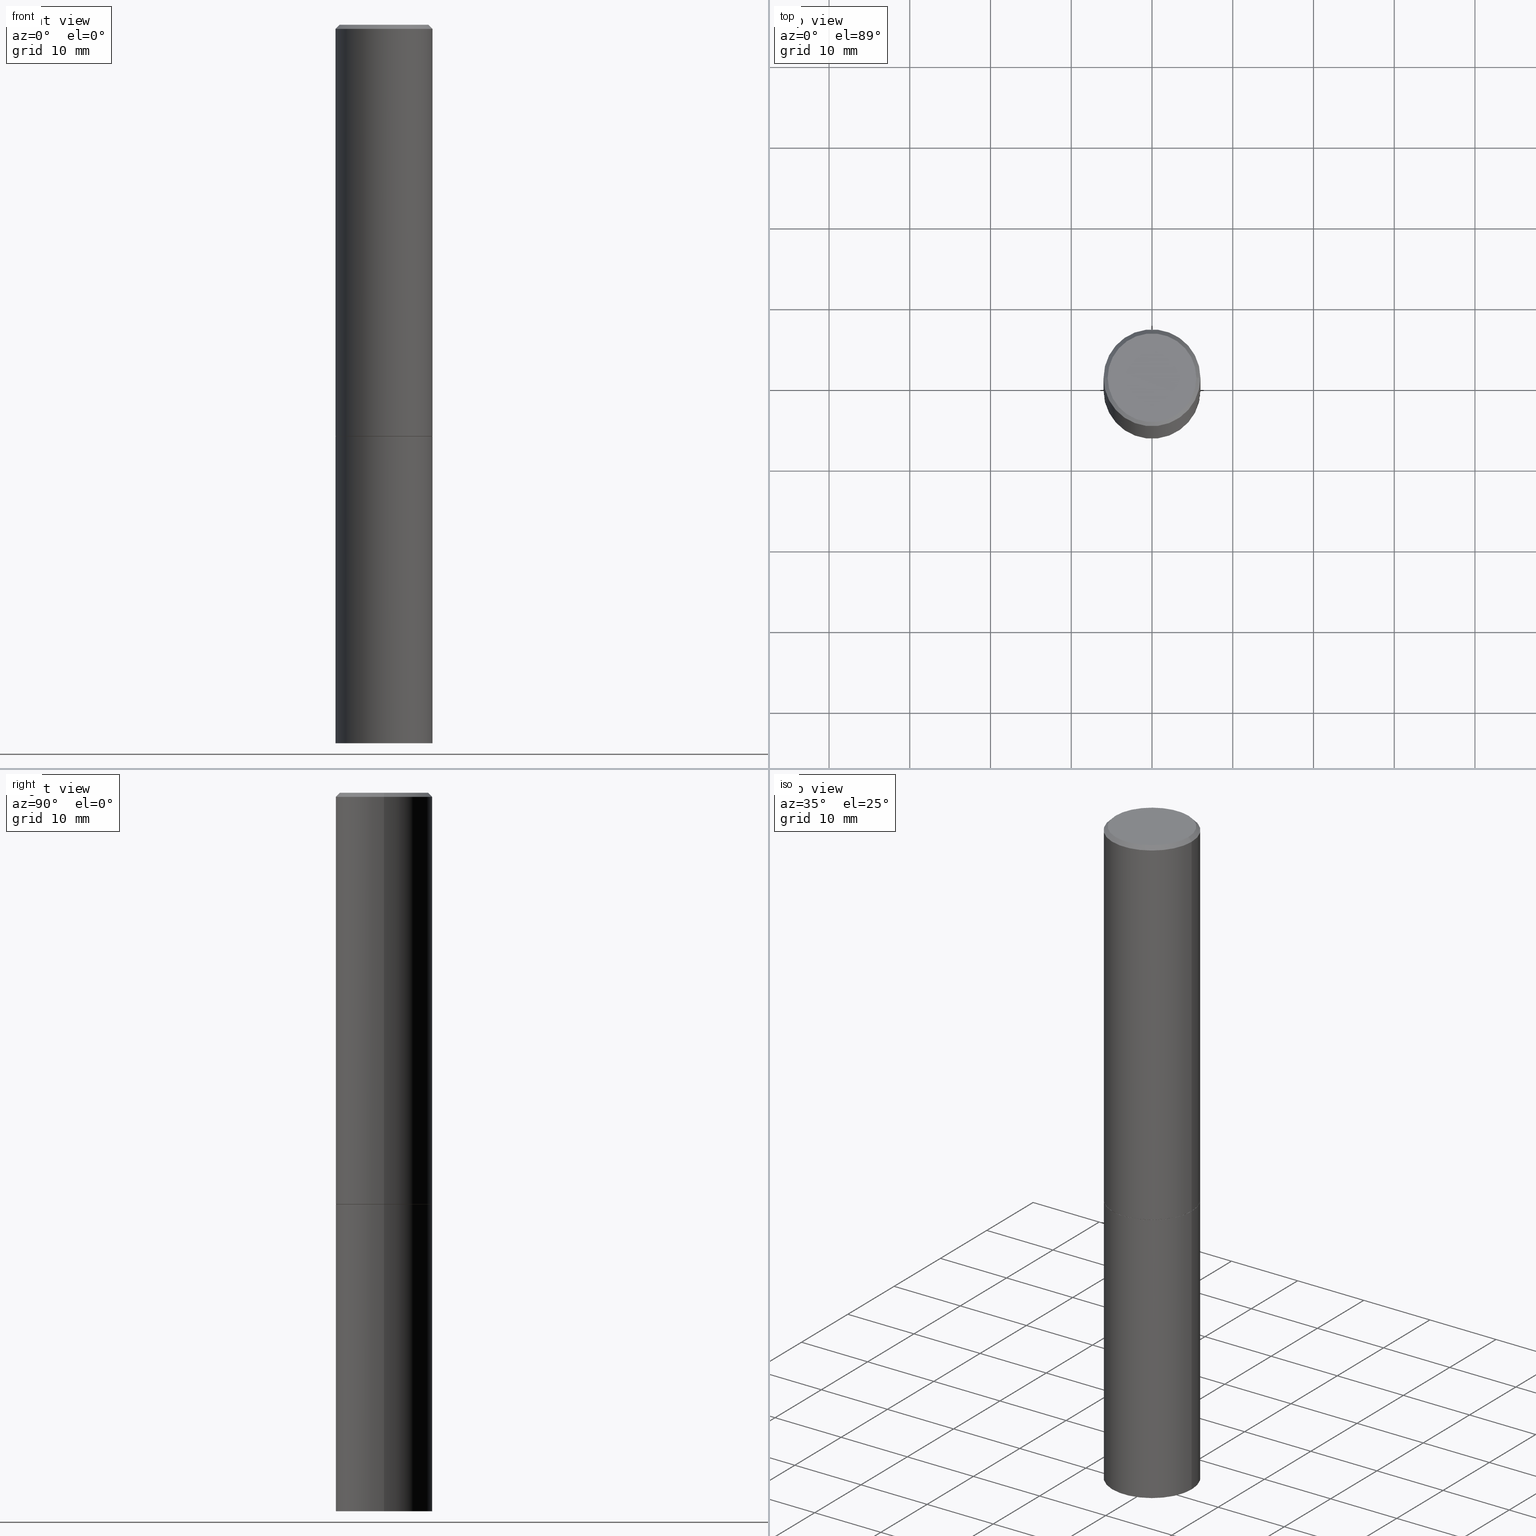
[diagram: canonical four-view strip — front | top / right | iso, engineering-drawing reading convention]
A machine part, canonical four-view strip (front | top / right | iso — engineering-drawing reading convention). The complete STEP part file that produces these views, byte-faithful:
ISO-10303-21;
HEADER;
FILE_DESCRIPTION (( 'STEP AP203' ),
    '1' );
FILE_NAME ('82981.STEP',
    '2024-02-29T20:28:29',
    ( '' ),
    ( '' ),
    'SwSTEP 2.0',
    'SolidWorks 2023',
    '' );
FILE_SCHEMA (( 'CONFIG_CONTROL_DESIGN' ));
ENDSEC;

DATA;
#1 = PERSON_AND_ORGANIZATION ( #50, #365 ) ;
#2 = ORIENTED_EDGE ( 'NONE', *, *, #134, .F. ) ;
#3 = DIRECTION ( 'NONE',  ( 1.000000000000000000, -6.982962677686266711E-15, 4.876176775795935793E-29 ) ) ;
#4 =( GEOMETRIC_REPRESENTATION_CONTEXT ( 3 ) GLOBAL_UNCERTAINTY_ASSIGNED_CONTEXT ( ( #354 ) ) GLOBAL_UNIT_ASSIGNED_CONTEXT ( ( #343, #117, #112 ) ) REPRESENTATION_CONTEXT ( 'NONE', 'WORKASPACE' ) );
#5 = ORIENTED_EDGE ( 'NONE', *, *, #270, .T. ) ;
#6 = CC_DESIGN_PERSON_AND_ORGANIZATION_ASSIGNMENT ( #1, #341, ( #241 ) ) ;
#7 = EDGE_CURVE ( 'NONE', #203, #261, #55, .T. ) ;
#8 = LENGTH_MEASURE_WITH_UNIT ( LENGTH_MEASURE( 0.02539999999999999897 ), #254 );
#9 = ORIENTED_EDGE ( 'NONE', *, *, #108, .F. ) ;
#10 = CARTESIAN_POINT ( 'NONE',  ( -0.2361999999999998545, 1.678301941865355605E-15, -1.161852468318208056E-29 ) ) ;
#11 = CC_DESIGN_SECURITY_CLASSIFICATION ( #191, ( #241 ) ) ;
#12 = DIRECTION ( 'NONE',  ( 1.000000000000000000, -6.982962677686265133E-15, 0.000000000000000000 ) ) ;
#13 = DIRECTION ( 'NONE',  ( -2.445468806185136877E-29, 3.491481338843145188E-15, 1.000000000000000000 ) ) ;
#14 = CARTESIAN_POINT ( 'NONE',  ( 0.2361999999999997157, -1.690279253850496996E-15, -0.02000000000000003164 ) ) ;
#15 = VECTOR ( 'NONE', #81, 39.37007874015748143 ) ;
#16 = EDGE_CURVE ( 'NONE', #231, #87, #181, .T. ) ;
#17 = CARTESIAN_POINT ( 'NONE',  ( 0.2351999999999999924, -8.652589053921076343E-15, -2.007800000000000029 ) ) ;
#18 = FACE_OUTER_BOUND ( 'NONE', #57, .T. ) ;
#19 = PLANE ( 'NONE',  #329 ) ;
#20 = VECTOR ( 'NONE', #278, 39.37007874015748143 ) ;
#21 = DIRECTION ( 'NONE',  ( -2.445468806185136597E-29, 3.491481338843145583E-15, 1.000000000000000000 ) ) ;
#22 = DIRECTION ( 'NONE',  ( -1.000000000000000000, 6.982962677686265922E-15, -4.876176775795935793E-29 ) ) ;
#23 = CARTESIAN_POINT ( 'NONE',  ( -0.2361999999999997157, 1.579546157692631255E-15, -0.02000000000000003164 ) ) ;
#24 = DESIGN_CONTEXT ( 'detailed design', #35, 'design' ) ;
#25 = LOCAL_TIME ( 15, 28, 29.00000000000000000, #345 ) ;
#26 = CARTESIAN_POINT ( 'NONE',  ( 0.000000000000000000, 0.000000000000000000, 0.000000000000000000 ) ) ;
#27 = PERSON_AND_ORGANIZATION ( #50, #365 ) ;
#28 = ORIENTED_EDGE ( 'NONE', *, *, #103, .F. ) ;
#29 = APPROVAL_ROLE ( '' ) ;
#30 = EDGE_CURVE ( 'NONE', #139, #337, #277, .T. ) ;
#31 = AXIS2_PLACEMENT_3D ( 'NONE', #160, #363, #330 ) ;
#32 = APPROVAL_STATUS ( 'not_yet_approved' ) ;
#33 = CC_DESIGN_APPROVAL ( #223, ( #191 ) ) ;
#34 = EDGE_LOOP ( 'NONE', ( #226, #85 ) ) ;
#35 = APPLICATION_CONTEXT ( 'configuration controlled 3d designs of mechanical parts and assemblies' ) ;
#36 = DATE_AND_TIME ( #140, #347 ) ;
#37 = EDGE_LOOP ( 'NONE', ( #2, #198, #60, #177 ) ) ;
#38 = ORIENTED_EDGE ( 'NONE', *, *, #80, .F. ) ;
#39 = VECTOR ( 'NONE', #272, 39.37007874015748143 ) ;
#40 = FACE_OUTER_BOUND ( 'NONE', #65, .T. ) ;
#41 = ADVANCED_FACE ( 'NONE', ( #351 ), #239, .T. ) ;
#42 = LINE ( 'NONE', #95, #150 ) ;
#43 = DIRECTION ( 'NONE',  ( 2.445468806185136597E-29, -3.491481338843145583E-15, -1.000000000000000000 ) ) ;
#44 = APPROVAL ( #32, 'UNSPECIFIED' ) ;
#45 = EDGE_LOOP ( 'NONE', ( #342, #283, #141, #258 ) ) ;
#46 = VECTOR ( 'NONE', #326, 39.37007874015748143 ) ;
#47 = DIRECTION ( 'NONE',  ( 0.7071067811865232589, -2.468850131082003836E-15, 0.7071067811865715536 ) ) ;
#48 = DIRECTION ( 'NONE',  ( 1.000000000000000000, -6.982962677686269077E-15, 0.000000000000000000 ) ) ;
#49 = ADVANCED_FACE ( 'NONE', ( #68 ), #310, .T. ) ;
#50 = PERSON ( 'UNSPECIFIED', 'UNSPECIFIED', 'UNSPECIFIED', ('UNSPECIFIED'), ('UNSPECIFIED'), ('UNSPECIFIED') ) ;
#51 = DIRECTION ( 'NONE',  ( -2.445468806185136597E-29, 3.491481338843145583E-15, 1.000000000000000000 ) ) ;
#52 = CARTESIAN_POINT ( 'NONE',  ( -1.043851414335219820E-46, 1.490343170380447200E-32, 4.268512490100411279E-18 ) ) ;
#53 = CARTESIAN_POINT ( 'NONE',  ( 0.2351999999999999924, -8.652589053921076343E-15, -2.007800000000000029 ) ) ;
#54 = DIRECTION ( 'NONE',  ( 2.438088387897960049E-29, -3.491481338843145188E-15, -1.000000000000000000 ) ) ;
#55 = CIRCLE ( 'NONE', #266, 0.2361999999999999933 ) ;
#56 = FACE_OUTER_BOUND ( 'NONE', #172, .T. ) ;
#57 = EDGE_LOOP ( 'NONE', ( #235, #340, #111, #146 ) ) ;
#58 = ORIENTED_EDGE ( 'NONE', *, *, #105, .T. ) ;
#59 = EDGE_CURVE ( 'NONE', #89, #87, #155, .T. ) ;
#60 = ORIENTED_EDGE ( 'NONE', *, *, #108, .T. ) ;
#61 = AXIS2_PLACEMENT_3D ( 'NONE', #52, #251, #135 ) ;
#62 = CALENDAR_DATE ( 2024, 29, 2 ) ;
#63 = LOCAL_TIME ( 15, 28, 29.00000000000000000, #92 ) ;
#64 = VERTEX_POINT ( 'NONE', #100 ) ;
#65 = EDGE_LOOP ( 'NONE', ( #286, #171, #265, #313 ) ) ;
#66 = DIRECTION ( 'NONE',  ( -1.000000000000000000, 6.982962677686265922E-15, -4.876176775795935793E-29 ) ) ;
#67 = FACE_OUTER_BOUND ( 'NONE', #174, .T. ) ;
#68 = FACE_OUTER_BOUND ( 'NONE', #151, .T. ) ;
#69 = CC_DESIGN_PERSON_AND_ORGANIZATION_ASSIGNMENT ( #138, #145, ( #241 ) ) ;
#70 = CARTESIAN_POINT ( 'NONE',  ( 0.000000000000000000, 0.000000000000000000, 0.000000000000000000 ) ) ;
#71 = CARTESIAN_POINT ( 'NONE',  ( 0.000000000000000000, 0.000000000000000000, 0.000000000000000000 ) ) ;
#72 = APPROVAL_PERSON_ORGANIZATION ( #27, #44, #173 ) ;
#73 = CARTESIAN_POINT ( 'NONE',  ( 4.890937612370280165E-31, -6.982962677686301470E-17, -0.02000000000000003164 ) ) ;
#74 = DIRECTION ( 'NONE',  ( 2.438088387897960049E-29, -3.491481338843145188E-15, -1.000000000000000000 ) ) ;
#75 = FACE_OUTER_BOUND ( 'NONE', #34, .T. ) ;
#76 = ADVANCED_BREP_SHAPE_REPRESENTATION ( '82981', ( #147, #149, #119 ), #4 ) ;
#77 = PRODUCT_RELATED_PRODUCT_CATEGORY ( 'detail', '', ( #238 ) ) ;
#78 = AXIS2_PLACEMENT_3D ( 'NONE', #297, #158, #123 ) ;
#79 = CARTESIAN_POINT ( 'NONE',  ( 4.907566800252331482E-29, -7.006704750790423614E-15, -2.006799999999999695 ) ) ;
#80 = EDGE_CURVE ( 'NONE', #261, #237, #42, .T. ) ;
#81 = DIRECTION ( 'NONE',  ( -0.7071067811865467956, 2.468850131082249172E-15, -0.7071067811865482389 ) ) ;
#82 = PERSON_AND_ORGANIZATION_ROLE ( 'creator' ) ;
#83 = ORIENTED_EDGE ( 'NONE', *, *, #229, .T. ) ;
#84 = AXIS2_PLACEMENT_3D ( 'NONE', #180, #213, #210 ) ;
#85 = ORIENTED_EDGE ( 'NONE', *, *, #30, .F. ) ;
#86 = SECURITY_CLASSIFICATION_LEVEL ( 'unclassified' ) ;
#87 = VERTEX_POINT ( 'NONE', #14 ) ;
#88 = PRODUCT_DEFINITION_SHAPE ( 'NONE', 'NONE',  #242 ) ;
#89 = VERTEX_POINT ( 'NONE', #159 ) ;
#90 = CC_DESIGN_PERSON_AND_ORGANIZATION_ASSIGNMENT ( #199, #287, ( #191 ) ) ;
#91 = CIRCLE ( 'NONE', #282, 0.2361999999999999933 ) ;
#92 = COORDINATED_UNIVERSAL_TIME_OFFSET ( 5, 0, .BEHIND. ) ;
#93 = AXIS2_PLACEMENT_3D ( 'NONE', #320, #232, #3 ) ;
#94 = PLANE ( 'NONE',  #175 ) ;
#95 = CARTESIAN_POINT ( 'NONE',  ( -0.2361999999999999933, 1.678301941865356591E-15, -1.161852468318208757E-29 ) ) ;
#96 = CC_DESIGN_DATE_AND_TIME_ASSIGNMENT ( #290, #202, ( #242 ) ) ;
#97 = EDGE_CURVE ( 'NONE', #261, #203, #352, .T. ) ;
#98 = CIRCLE ( 'NONE', #109, 0.2361999999999999933 ) ;
#99 = CARTESIAN_POINT ( 'NONE',  ( 8.568678149992099474E-29, -1.223380146317249786E-14, -3.503899999999999793 ) ) ;
#100 = CARTESIAN_POINT ( 'NONE',  ( -0.2361999999999997157, 1.579546157692631255E-15, -0.02000000000000003164 ) ) ;
#101 = DIRECTION ( 'NONE',  ( -2.445468806185136597E-29, 3.491481338843145583E-15, 1.000000000000000000 ) ) ;
#102 = DIRECTION ( 'NONE',  ( -2.445468806185136597E-29, 3.491481338843145583E-15, 1.000000000000000000 ) ) ;
#103 = EDGE_CURVE ( 'NONE', #231, #116, #246, .T. ) ;
#104 = DIRECTION ( 'NONE',  ( -2.445468806185136597E-29, 3.491481338843145583E-15, 1.000000000000000000 ) ) ;
#105 = EDGE_CURVE ( 'NONE', #116, #64, #303, .T. ) ;
#106 = DIRECTION ( 'NONE',  ( -2.445468806185136597E-29, 3.491481338843145583E-15, 1.000000000000000000 ) ) ;
#107 = DIRECTION ( 'NONE',  ( 1.000000000000000000, -6.982962677686264344E-15, 0.000000000000000000 ) ) ;
#108 = EDGE_CURVE ( 'NONE', #337, #231, #243, .T. ) ;
#109 = AXIS2_PLACEMENT_3D ( 'NONE', #362, #51, #48 ) ;
#110 = DIRECTION ( 'NONE',  ( 1.000000000000000000, -6.982962677686269077E-15, 0.000000000000000000 ) ) ;
#111 = ORIENTED_EDGE ( 'NONE', *, *, #208, .T. ) ;
#112 =( NAMED_UNIT ( * ) SI_UNIT ( $, .STERADIAN. ) SOLID_ANGLE_UNIT ( ) );
#113 = ORIENTED_EDGE ( 'NONE', *, *, #134, .T. ) ;
#114 = CALENDAR_DATE ( 2024, 29, 2 ) ;
#115 = COORDINATED_UNIVERSAL_TIME_OFFSET ( 5, 0, .BEHIND. ) ;
#116 = VERTEX_POINT ( 'NONE', #294 ) ;
#117 =( NAMED_UNIT ( * ) PLANE_ANGLE_UNIT ( ) SI_UNIT ( $, .RADIAN. ) );
#118 = CLOSED_SHELL ( 'NONE', ( #319, #361, #298, #49, #41, #333, #276, #187 ) ) ;
#119 = AXIS2_PLACEMENT_3D ( 'NONE', #26, #262, #234 ) ;
#120 = ORIENTED_EDGE ( 'NONE', *, *, #16, .F. ) ;
#121 = ORIENTED_EDGE ( 'NONE', *, *, #256, .T. ) ;
#122 = ADVANCED_FACE ( 'NONE', ( #40 ), #355, .T. ) ;
#123 = DIRECTION ( 'NONE',  ( 1.000000000000000000, -6.982962677686264344E-15, 0.000000000000000000 ) ) ;
#124 = SHAPE_DEFINITION_REPRESENTATION ( #88, #76 ) ;
#125 = VECTOR ( 'NONE', #13, 39.37007874015748143 ) ;
#126 = CARTESIAN_POINT ( 'NONE',  ( 8.568678149992099474E-29, -1.223380146317249786E-14, -3.503899999999999793 ) ) ;
#127 = CALENDAR_DATE ( 2024, 29, 2 ) ;
#128 = LINE ( 'NONE', #182, #183 ) ;
#129 = CARTESIAN_POINT ( 'NONE',  ( 1.649375784469545040E-15, 0.2361999999999929989, -2.007800000000000473 ) ) ;
#130 = DIRECTION ( 'NONE',  ( -1.000000000000000000, 6.982962677686265922E-15, -4.876176775795935793E-29 ) ) ;
#131 = AXIS2_PLACEMENT_3D ( 'NONE', #71, #236, #215 ) ;
#132 = AXIS2_PLACEMENT_3D ( 'NONE', #279, #275, #107 ) ;
#133 = DIRECTION ( 'NONE',  ( 2.445468806185136597E-29, -3.491481338843145583E-15, -1.000000000000000000 ) ) ;
#134 = EDGE_CURVE ( 'NONE', #139, #116, #128, .T. ) ;
#135 = DIRECTION ( 'NONE',  ( 1.000000000000000000, -6.982962677686267499E-15, 4.876217060660161841E-29 ) ) ;
#136 = FACE_OUTER_BOUND ( 'NONE', #346, .T. ) ;
#137 = CLOSED_SHELL ( 'NONE', ( #122, #284, #188, #357 ) ) ;
#138 = PERSON_AND_ORGANIZATION ( #50, #365 ) ;
#139 = VERTEX_POINT ( 'NONE', #244 ) ;
#140 = CALENDAR_DATE ( 2024, 29, 2 ) ;
#141 = ORIENTED_EDGE ( 'NONE', *, *, #16, .T. ) ;
#142 = CONICAL_SURFACE ( 'NONE', #302, 0.2361999999999997157, 0.7853981633974472798 ) ;
#143 = MECHANICAL_CONTEXT ( 'NONE', #314, 'mechanical' ) ;
#144 = ORIENTED_EDGE ( 'NONE', *, *, #103, .T. ) ;
#145 = PERSON_AND_ORGANIZATION_ROLE ( 'creator' ) ;
#146 = ORIENTED_EDGE ( 'NONE', *, *, #349, .F. ) ;
#147 = MANIFOLD_SOLID_BREP ( 'Body-Move/Copy2[1]', #137 ) ;
#148 = ORIENTED_EDGE ( 'NONE', *, *, #97, .F. ) ;
#149 = MANIFOLD_SOLID_BREP ( 'Body-Move/Copy2[2]', #118 ) ;
#150 = VECTOR ( 'NONE', #271, 39.37007874015748143 ) ;
#151 = EDGE_LOOP ( 'NONE', ( #227, #288, #153, #5 ) ) ;
#152 = DATE_TIME_ROLE ( 'classification_date' ) ;
#153 = ORIENTED_EDGE ( 'NONE', *, *, #349, .T. ) ;
#154 = DIMENSIONAL_EXPONENTS ( 1.000000000000000000, 0.000000000000000000, 0.000000000000000000, 0.000000000000000000, 0.000000000000000000, 0.000000000000000000, 0.000000000000000000 ) ;
#155 = LINE ( 'NONE', #268, #39 ) ;
#156 = CALENDAR_DATE ( 2024, 29, 2 ) ;
#157 = CIRCLE ( 'NONE', #240, 0.2361999999999997157 ) ;
#158 = DIRECTION ( 'NONE',  ( -2.445468806185136597E-29, 3.491481338843145583E-15, 1.000000000000000000 ) ) ;
#159 = CARTESIAN_POINT ( 'NONE',  ( 0.2161999999999997257, -1.586759460484350016E-15, 4.268512490111238857E-18 ) ) ;
#160 = CARTESIAN_POINT ( 'NONE',  ( 4.910012269058516525E-29, -7.010196232129267410E-15, -2.007800000000000029 ) ) ;
#161 = CARTESIAN_POINT ( 'NONE',  ( 1.649375784469581525E-15, 0.2361999999999877808, -3.503900000000000681 ) ) ;
#162 = CC_DESIGN_APPROVAL ( #44, ( #241 ) ) ;
#163 = EDGE_CURVE ( 'NONE', #293, #89, #318, .T. ) ;
#164 = FACE_OUTER_BOUND ( 'NONE', #317, .T. ) ;
#165 = LINE ( 'NONE', #23, #15 ) ;
#166 = CC_DESIGN_DATE_AND_TIME_ASSIGNMENT ( #214, #152, ( #191 ) ) ;
#167 = DIRECTION ( 'NONE',  ( 1.000000000000000000, -6.982962677686266711E-15, 4.876176775795936353E-29 ) ) ;
#168 = AXIS2_PLACEMENT_3D ( 'NONE', #193, #21, #332 ) ;
#169 = CONICAL_SURFACE ( 'NONE', #353, 0.2351999999999999924, 0.7853981633974141952 ) ;
#170 = DATE_AND_TIME ( #114, #25 ) ;
#171 = ORIENTED_EDGE ( 'NONE', *, *, #80, .T. ) ;
#172 = EDGE_LOOP ( 'NONE', ( #144, #58, #344, #120 ) ) ;
#173 = APPROVAL_ROLE ( '' ) ;
#174 = EDGE_LOOP ( 'NONE', ( #200, #321 ) ) ;
#175 = AXIS2_PLACEMENT_3D ( 'NONE', #207, #322, #66 ) ;
#176 = APPLICATION_PROTOCOL_DEFINITION ( 'international standard', 'config_control_design', 1994, #314 ) ;
#177 = ORIENTED_EDGE ( 'NONE', *, *, #309, .F. ) ;
#178 = DIRECTION ( 'NONE',  ( -2.445468806185136597E-29, 3.491481338843145583E-15, 1.000000000000000000 ) ) ;
#179 = AXIS2_PLACEMENT_3D ( 'NONE', #331, #305, #110 ) ;
#180 = CARTESIAN_POINT ( 'NONE',  ( 4.907566800252331482E-29, -7.006704750790423614E-15, -2.006799999999999695 ) ) ;
#181 = LINE ( 'NONE', #299, #46 ) ;
#182 = CARTESIAN_POINT ( 'NONE',  ( -0.2351999999999999924, -5.338999717621511235E-15, -2.007800000000000029 ) ) ;
#183 = VECTOR ( 'NONE', #301, 39.37007874015748854 ) ;
#184 = DIRECTION ( 'NONE',  ( -2.445468806185136597E-29, 3.491481338843145583E-15, 1.000000000000000000 ) ) ;
#185 = DIRECTION ( 'NONE',  ( -2.445468806185136597E-29, 3.491481338843145583E-15, 1.000000000000000000 ) ) ;
#186 = CARTESIAN_POINT ( 'NONE',  ( 0.2361999999999999933, -1.649375784469496131E-15, 1.151752954443000088E-29 ) ) ;
#187 = ADVANCED_FACE ( 'NONE', ( #350 ), #94, .F. ) ;
#188 = ADVANCED_FACE ( 'NONE', ( #67 ), #19, .F. ) ;
#189 = CARTESIAN_POINT ( 'NONE',  ( 0.2361999999999999933, -8.659572016598763935E-15, -2.007800000000000029 ) ) ;
#190 = AXIS2_PLACEMENT_3D ( 'NONE', #356, #178, #348 ) ;
#191 = SECURITY_CLASSIFICATION ( '', '', #86 ) ;
#192 = DIRECTION ( 'NONE',  ( -1.000000000000000000, 6.982962677686266711E-15, 0.000000000000000000 ) ) ;
#193 = CARTESIAN_POINT ( 'NONE',  ( 4.910012269058516525E-29, -7.010196232129267410E-15, -2.007800000000000029 ) ) ;
#194 = ORIENTED_EDGE ( 'NONE', *, *, #163, .T. ) ;
#195 = AXIS2_PLACEMENT_3D ( 'NONE', #328, #43, #324 ) ;
#196 = APPROVAL_PERSON_ORGANIZATION ( #312, #228, #29 ) ;
#197 = APPROVAL_STATUS ( 'not_yet_approved' ) ;
#198 = ORIENTED_EDGE ( 'NONE', *, *, #30, .T. ) ;
#199 = PERSON_AND_ORGANIZATION ( #50, #365 ) ;
#200 = ORIENTED_EDGE ( 'NONE', *, *, #257, .T. ) ;
#201 = EDGE_CURVE ( 'NONE', #237, #311, #221, .T. ) ;
#202 = DATE_TIME_ROLE ( 'creation_date' ) ;
#203 = VERTEX_POINT ( 'NONE', #249 ) ;
#204 = COORDINATED_UNIVERSAL_TIME_OFFSET ( 5, 0, .BEHIND. ) ;
#205 = ORIENTED_EDGE ( 'NONE', *, *, #217, .T. ) ;
#206 = CC_DESIGN_PERSON_AND_ORGANIZATION_ASSIGNMENT ( #315, #82, ( #242 ) ) ;
#207 = CARTESIAN_POINT ( 'NONE',  ( 1.509716530915768746E-15, 0.2161999999999997257, -7.527240092128370190E-16 ) ) ;
#208 = EDGE_CURVE ( 'NONE', #87, #64, #252, .T. ) ;
#209 = APPROVAL_ROLE ( '' ) ;
#210 = DIRECTION ( 'NONE',  ( 1.000000000000000000, -6.982962677686265133E-15, 0.000000000000000000 ) ) ;
#211 = AXIS2_PLACEMENT_3D ( 'NONE', #126, #184, #12 ) ;
#212 = DIRECTION ( 'NONE',  ( 1.000000000000000000, -6.982962677686265133E-15, 0.000000000000000000 ) ) ;
#213 = DIRECTION ( 'NONE',  ( -2.445468806185136597E-29, 3.491481338843145583E-15, 1.000000000000000000 ) ) ;
#214 = DATE_AND_TIME ( #156, #247 ) ;
#215 = DIRECTION ( 'NONE',  ( 1.000000000000000000, -6.982962677686266711E-15, 4.876176775795935793E-29 ) ) ;
#216 = CARTESIAN_POINT ( 'NONE',  ( 4.910012269058516525E-29, -7.010196232129267410E-15, -2.007800000000000029 ) ) ;
#217 = EDGE_CURVE ( 'NONE', #203, #311, #218, .T. ) ;
#218 = LINE ( 'NONE', #186, #20 ) ;
#219 = DIRECTION ( 'NONE',  ( 1.000000000000000000, -6.982962677686265133E-15, 0.000000000000000000 ) ) ;
#220 = FACE_OUTER_BOUND ( 'NONE', #37, .T. ) ;
#221 = CIRCLE ( 'NONE', #179, 0.2361999999999999933 ) ;
#222 = CC_DESIGN_APPROVAL ( #228, ( #242 ) ) ;
#223 = APPROVAL ( #323, 'UNSPECIFIED' ) ;
#224 = CARTESIAN_POINT ( 'NONE',  ( -0.2361999999999999933, -7.943696905785525451E-15, -3.503899999999999793 ) ) ;
#225 = APPLICATION_PROTOCOL_DEFINITION ( 'international standard', 'config_control_design', 1994, #35 ) ;
#226 = ORIENTED_EDGE ( 'NONE', *, *, #256, .F. ) ;
#227 = ORIENTED_EDGE ( 'NONE', *, *, #59, .F. ) ;
#228 = APPROVAL ( #197, 'UNSPECIFIED' ) ;
#229 = EDGE_CURVE ( 'NONE', #89, #293, #325, .T. ) ;
#230 = APPROVAL_DATE_TIME ( #36, #44 ) ;
#231 = VERTEX_POINT ( 'NONE', #360 ) ;
#232 = DIRECTION ( 'NONE',  ( -2.445468806185136597E-29, 3.491481338843145583E-15, 1.000000000000000000 ) ) ;
#233 = ORIENTED_EDGE ( 'NONE', *, *, #7, .F. ) ;
#234 = DIRECTION ( 'NONE',  ( 1.000000000000000000, 0.000000000000000000, 0.000000000000000000 ) ) ;
#235 = ORIENTED_EDGE ( 'NONE', *, *, #229, .F. ) ;
#236 = DIRECTION ( 'NONE',  ( -2.445468806185136597E-29, 3.491481338843145583E-15, 1.000000000000000000 ) ) ;
#237 = VERTEX_POINT ( 'NONE', #245 ) ;
#238 = PRODUCT ( '82981', '82981', '', ( #143 ) ) ;
#239 = CYLINDRICAL_SURFACE ( 'NONE', #131, 0.2361999999999998545 ) ;
#240 = AXIS2_PLACEMENT_3D ( 'NONE', #73, #104, #306 ) ;
#241 = PRODUCT_DEFINITION_FORMATION_WITH_SPECIFIED_SOURCE ( 'ANY', '', #238, .NOT_KNOWN. ) ;
#242 = PRODUCT_DEFINITION ( 'UNKNOWN', '', #241, #24 ) ;
#243 = LINE ( 'NONE', #17, #338 ) ;
#244 = CARTESIAN_POINT ( 'NONE',  ( -0.2351999999999999924, -5.333701263273288833E-15, -2.007800000000000029 ) ) ;
#245 = CARTESIAN_POINT ( 'NONE',  ( -0.2361999999999999933, -7.943696905785525451E-15, -2.007800000000000029 ) ) ;
#246 = CIRCLE ( 'NONE', #84, 0.2361999999999999933 ) ;
#247 = LOCAL_TIME ( 15, 28, 29.00000000000000000, #115 ) ;
#248 = DIRECTION ( 'NONE',  ( -2.445468806185136597E-29, 3.491481338843145583E-15, 1.000000000000000000 ) ) ;
#249 = CARTESIAN_POINT ( 'NONE',  ( 0.2361999999999999933, -1.388317724764199281E-14, -3.503899999999999793 ) ) ;
#250 = PLANE ( 'NONE',  #31 ) ;
#251 = DIRECTION ( 'NONE',  ( -2.445468806185136597E-29, 3.491481338843145583E-15, 1.000000000000000000 ) ) ;
#252 = CIRCLE ( 'NONE', #295, 0.2361999999999997157 ) ;
#253 = CYLINDRICAL_SURFACE ( 'NONE', #93, 0.2361999999999998545 ) ;
#254 =( LENGTH_UNIT ( ) NAMED_UNIT ( * ) SI_UNIT ( $, .METRE. ) );
#255 = ORIENTED_EDGE ( 'NONE', *, *, #97, .T. ) ;
#256 = EDGE_CURVE ( 'NONE', #337, #139, #259, .T. ) ;
#257 = EDGE_CURVE ( 'NONE', #311, #237, #98, .T. ) ;
#258 = ORIENTED_EDGE ( 'NONE', *, *, #270, .F. ) ;
#259 = CIRCLE ( 'NONE', #168, 0.2351999999999999924 ) ;
#260 = APPROVAL_DATE_TIME ( #170, #228 ) ;
#261 = VERTEX_POINT ( 'NONE', #224 ) ;
#262 = DIRECTION ( 'NONE',  ( 0.000000000000000000, 0.000000000000000000, 1.000000000000000000 ) ) ;
#263 = EDGE_LOOP ( 'NONE', ( #233, #148 ) ) ;
#264 = DATE_AND_TIME ( #127, #339 ) ;
#265 = ORIENTED_EDGE ( 'NONE', *, *, #257, .F. ) ;
#266 = AXIS2_PLACEMENT_3D ( 'NONE', #99, #101, #212 ) ;
#267 = APPROVAL_PERSON_ORGANIZATION ( #300, #223, #209 ) ;
#268 = CARTESIAN_POINT ( 'NONE',  ( 0.2361999999999997157, -1.690279253850496996E-15, -0.02000000000000003164 ) ) ;
#269 = DIRECTION ( 'NONE',  ( 1.000000000000000000, -6.982962677686266711E-15, 4.876176775795936353E-29 ) ) ;
#270 = EDGE_CURVE ( 'NONE', #64, #87, #157, .T. ) ;
#271 = DIRECTION ( 'NONE',  ( -2.445468806185136877E-29, 3.491481338843145188E-15, 1.000000000000000000 ) ) ;
#272 = DIRECTION ( 'NONE',  ( 0.7071067811865467956, -7.319954787623254468E-15, -0.7071067811865482389 ) ) ;
#273 = DIRECTION ( 'NONE',  ( 1.000000000000000000, -6.982962677686266711E-15, 0.000000000000000000 ) ) ;
#274 = CC_DESIGN_PERSON_AND_ORGANIZATION_ASSIGNMENT ( #336, #285, ( #238 ) ) ;
#275 = DIRECTION ( 'NONE',  ( -2.445468806185136597E-29, 3.491481338843145583E-15, 1.000000000000000000 ) ) ;
#276 = ADVANCED_FACE ( 'NONE', ( #75 ), #250, .F. ) ;
#277 = CIRCLE ( 'NONE', #78, 0.2351999999999999924 ) ;
#278 = DIRECTION ( 'NONE',  ( -2.445468806185136877E-29, 3.491481338843145188E-15, 1.000000000000000000 ) ) ;
#279 = CARTESIAN_POINT ( 'NONE',  ( 4.910012269058516525E-29, -7.010196232129267410E-15, -2.007800000000000029 ) ) ;
#280 = FACE_OUTER_BOUND ( 'NONE', #263, .T. ) ;
#281 = AXIS2_PLACEMENT_3D ( 'NONE', #70, #327, #269 ) ;
#282 = AXIS2_PLACEMENT_3D ( 'NONE', #79, #106, #219 ) ;
#283 = ORIENTED_EDGE ( 'NONE', *, *, #309, .T. ) ;
#284 = ADVANCED_FACE ( 'NONE', ( #280 ), #307, .T. ) ;
#285 = PERSON_AND_ORGANIZATION_ROLE ( 'design_owner' ) ;
#286 = ORIENTED_EDGE ( 'NONE', *, *, #7, .T. ) ;
#287 = PERSON_AND_ORGANIZATION_ROLE ( 'classification_officer' ) ;
#288 = ORIENTED_EDGE ( 'NONE', *, *, #163, .F. ) ;
#289 = CONICAL_SURFACE ( 'NONE', #132, 0.2351999999999999924, 0.7853981633974141952 ) ;
#290 = DATE_AND_TIME ( #62, #63 ) ;
#291 = EDGE_LOOP ( 'NONE', ( #194, #83 ) ) ;
#292 = APPROVAL_DATE_TIME ( #264, #223 ) ;
#293 = VERTEX_POINT ( 'NONE', #358 ) ;
#294 = CARTESIAN_POINT ( 'NONE',  ( -0.2362000000000000210, -1.859965246918283512E-15, -2.006799999999999695 ) ) ;
#295 = AXIS2_PLACEMENT_3D ( 'NONE', #304, #248, #273 ) ;
#296 = COORDINATED_UNIVERSAL_TIME_OFFSET ( 5, 0, .BEHIND. ) ;
#297 = CARTESIAN_POINT ( 'NONE',  ( 4.910012269058516525E-29, -7.010196232129267410E-15, -2.007800000000000029 ) ) ;
#298 = ADVANCED_FACE ( 'NONE', ( #18 ), #142, .T. ) ;
#299 = CARTESIAN_POINT ( 'NONE',  ( 0.2361999999999998545, -1.649375784469495145E-15, 1.151752954442999387E-29 ) ) ;
#300 = PERSON_AND_ORGANIZATION ( #50, #365 ) ;
#301 = DIRECTION ( 'NONE',  ( -0.7071067811865232589, 7.493145998870265808E-15, 0.7071067811865715536 ) ) ;
#302 = AXIS2_PLACEMENT_3D ( 'NONE', #335, #133, #192 ) ;
#303 = LINE ( 'NONE', #10, #125 ) ;
#304 = CARTESIAN_POINT ( 'NONE',  ( 4.890937612370280165E-31, -6.982962677686301470E-17, -0.02000000000000003164 ) ) ;
#305 = DIRECTION ( 'NONE',  ( -2.445468806185136597E-29, 3.491481338843145583E-15, 1.000000000000000000 ) ) ;
#306 = DIRECTION ( 'NONE',  ( 1.000000000000000000, -6.982962677686266711E-15, 0.000000000000000000 ) ) ;
#307 = PLANE ( 'NONE',  #364 ) ;
#308 = CYLINDRICAL_SURFACE ( 'NONE', #359, 0.2361999999999999933 ) ;
#309 = EDGE_CURVE ( 'NONE', #116, #231, #91, .T. ) ;
#310 = CONICAL_SURFACE ( 'NONE', #195, 0.2361999999999997157, 0.7853981633974472798 ) ;
#311 = VERTEX_POINT ( 'NONE', #189 ) ;
#312 = PERSON_AND_ORGANIZATION ( #50, #365 ) ;
#313 = ORIENTED_EDGE ( 'NONE', *, *, #217, .F. ) ;
#314 = APPLICATION_CONTEXT ( 'configuration controlled 3d designs of mechanical parts and assemblies' ) ;
#315 = PERSON_AND_ORGANIZATION ( #50, #365 ) ;
#316 = ORIENTED_EDGE ( 'NONE', *, *, #201, .F. ) ;
#317 = EDGE_LOOP ( 'NONE', ( #121, #113, #28, #9 ) ) ;
#318 = CIRCLE ( 'NONE', #190, 0.2161999999999997257 ) ;
#319 = ADVANCED_FACE ( 'NONE', ( #164 ), #289, .T. ) ;
#320 = CARTESIAN_POINT ( 'NONE',  ( 0.000000000000000000, 0.000000000000000000, 0.000000000000000000 ) ) ;
#321 = ORIENTED_EDGE ( 'NONE', *, *, #201, .T. ) ;
#322 = DIRECTION ( 'NONE',  ( 2.438088387897960049E-29, -3.491481338843145188E-15, -1.000000000000000000 ) ) ;
#323 = APPROVAL_STATUS ( 'not_yet_approved' ) ;
#324 = DIRECTION ( 'NONE',  ( -1.000000000000000000, 6.982962677686266711E-15, 0.000000000000000000 ) ) ;
#325 = CIRCLE ( 'NONE', #61, 0.2161999999999997257 ) ;
#326 = DIRECTION ( 'NONE',  ( -2.445468806185136877E-29, 3.491481338843145188E-15, 1.000000000000000000 ) ) ;
#327 = DIRECTION ( 'NONE',  ( -2.445468806185136597E-29, 3.491481338843145583E-15, 1.000000000000000000 ) ) ;
#328 = CARTESIAN_POINT ( 'NONE',  ( 4.890937612370280165E-31, -6.982962677686301470E-17, -0.02000000000000003164 ) ) ;
#329 = AXIS2_PLACEMENT_3D ( 'NONE', #129, #54, #22 ) ;
#330 = DIRECTION ( 'NONE',  ( 1.000000000000000000, -6.982962677686265922E-15, 4.876176775795935793E-29 ) ) ;
#331 = CARTESIAN_POINT ( 'NONE',  ( 4.910012269058516525E-29, -7.010196232129267410E-15, -2.007800000000000029 ) ) ;
#332 = DIRECTION ( 'NONE',  ( 1.000000000000000000, -6.982962677686264344E-15, 0.000000000000000000 ) ) ;
#333 = ADVANCED_FACE ( 'NONE', ( #220 ), #169, .T. ) ;
#334 = DIRECTION ( 'NONE',  ( 1.000000000000000000, -6.982962677686264344E-15, 0.000000000000000000 ) ) ;
#335 = CARTESIAN_POINT ( 'NONE',  ( 4.890937612370280165E-31, -6.982962677686301470E-17, -0.02000000000000003164 ) ) ;
#336 = PERSON_AND_ORGANIZATION ( #50, #365 ) ;
#337 = VERTEX_POINT ( 'NONE', #53 ) ;
#338 = VECTOR ( 'NONE', #47, 39.37007874015748854 ) ;
#339 = LOCAL_TIME ( 15, 28, 29.00000000000000000, #296 ) ;
#340 = ORIENTED_EDGE ( 'NONE', *, *, #59, .T. ) ;
#341 = PERSON_AND_ORGANIZATION_ROLE ( 'design_supplier' ) ;
#342 = ORIENTED_EDGE ( 'NONE', *, *, #105, .F. ) ;
#343 =( CONVERSION_BASED_UNIT ( 'INCH', #8 ) LENGTH_UNIT ( ) NAMED_UNIT ( #154 ) );
#344 = ORIENTED_EDGE ( 'NONE', *, *, #208, .F. ) ;
#345 = COORDINATED_UNIVERSAL_TIME_OFFSET ( 5, 0, .BEHIND. ) ;
#346 = EDGE_LOOP ( 'NONE', ( #38, #255, #205, #316 ) ) ;
#347 = LOCAL_TIME ( 15, 28, 29.00000000000000000, #204 ) ;
#348 = DIRECTION ( 'NONE',  ( 1.000000000000000000, -6.982962677686267499E-15, 4.876217060660161841E-29 ) ) ;
#349 = EDGE_CURVE ( 'NONE', #293, #64, #165, .T. ) ;
#350 = FACE_OUTER_BOUND ( 'NONE', #291, .T. ) ;
#351 = FACE_OUTER_BOUND ( 'NONE', #45, .T. ) ;
#352 = CIRCLE ( 'NONE', #211, 0.2361999999999999933 ) ;
#353 = AXIS2_PLACEMENT_3D ( 'NONE', #216, #102, #334 ) ;
#354 = UNCERTAINTY_MEASURE_WITH_UNIT (LENGTH_MEASURE( 1.000000000000000082E-05 ), #343, 'distance_accuracy_value', 'NONE');
#355 = CYLINDRICAL_SURFACE ( 'NONE', #281, 0.2361999999999999933 ) ;
#356 = CARTESIAN_POINT ( 'NONE',  ( -1.043851414335219820E-46, 1.490343170380447200E-32, 4.268512490100411279E-18 ) ) ;
#357 = ADVANCED_FACE ( 'NONE', ( #136 ), #308, .T. ) ;
#358 = CARTESIAN_POINT ( 'NONE',  ( -0.2161999999999997257, 1.544631344304200197E-15, 4.268512490089730842E-18 ) ) ;
#359 = AXIS2_PLACEMENT_3D ( 'NONE', #366, #185, #167 ) ;
#360 = CARTESIAN_POINT ( 'NONE',  ( 0.2361999999999999933, -8.656080535259919350E-15, -2.006799999999999695 ) ) ;
#361 = ADVANCED_FACE ( 'NONE', ( #56 ), #253, .T. ) ;
#362 = CARTESIAN_POINT ( 'NONE',  ( 4.910012269058516525E-29, -7.010196232129267410E-15, -2.007800000000000029 ) ) ;
#363 = DIRECTION ( 'NONE',  ( -2.438088387897960049E-29, 3.491481338843145188E-15, 1.000000000000000000 ) ) ;
#364 = AXIS2_PLACEMENT_3D ( 'NONE', #161, #74, #130 ) ;
#365 = ORGANIZATION ( 'UNSPECIFIED', 'UNSPECIFIED', '' ) ;
#366 = CARTESIAN_POINT ( 'NONE',  ( 0.000000000000000000, 0.000000000000000000, 0.000000000000000000 ) ) ;
ENDSEC;
END-ISO-10303-21;
